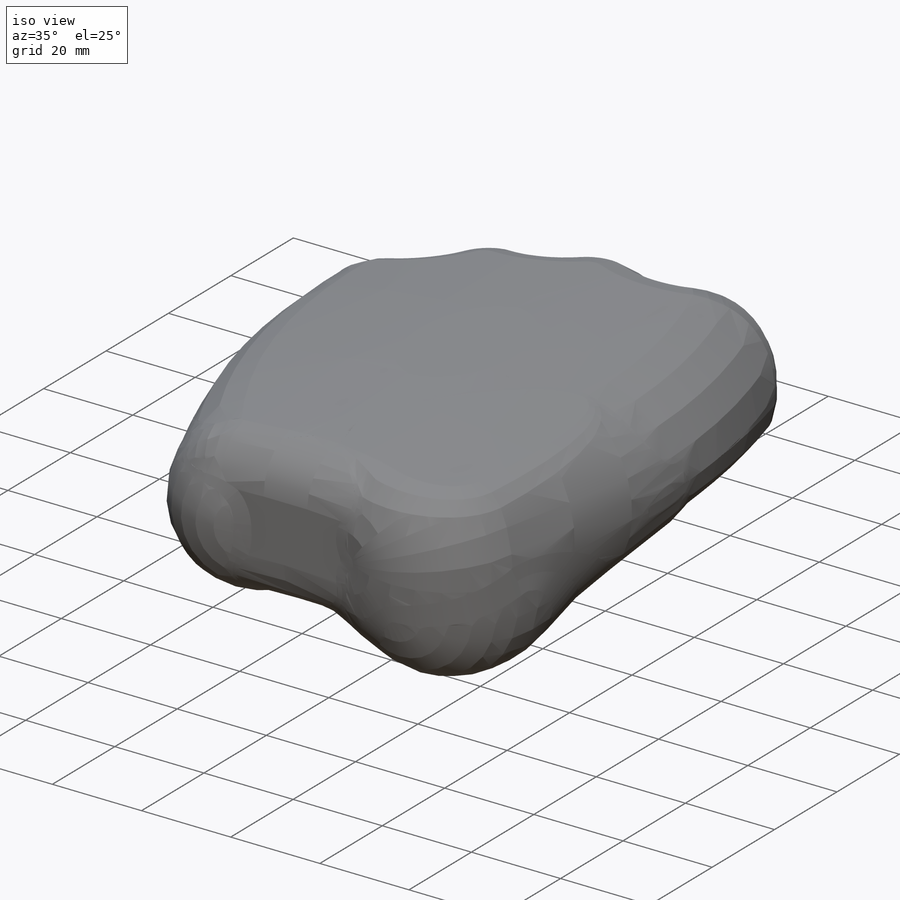
[diagram: iso view]
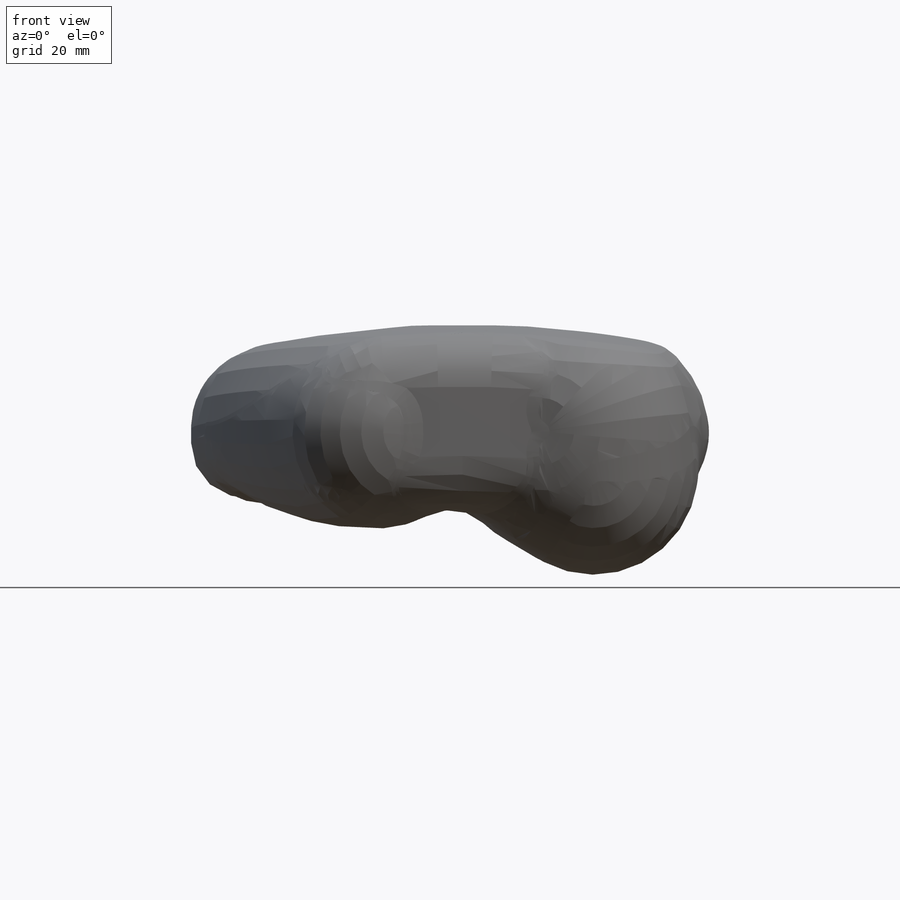
[diagram: front view]
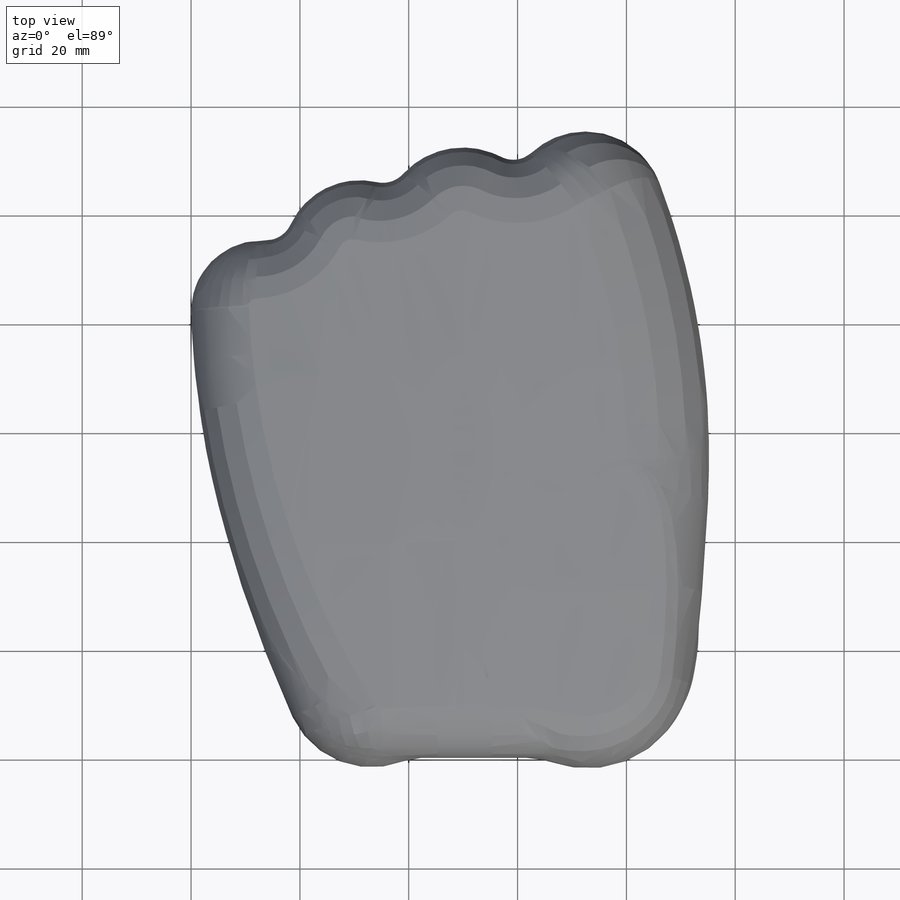
[diagram: top view]
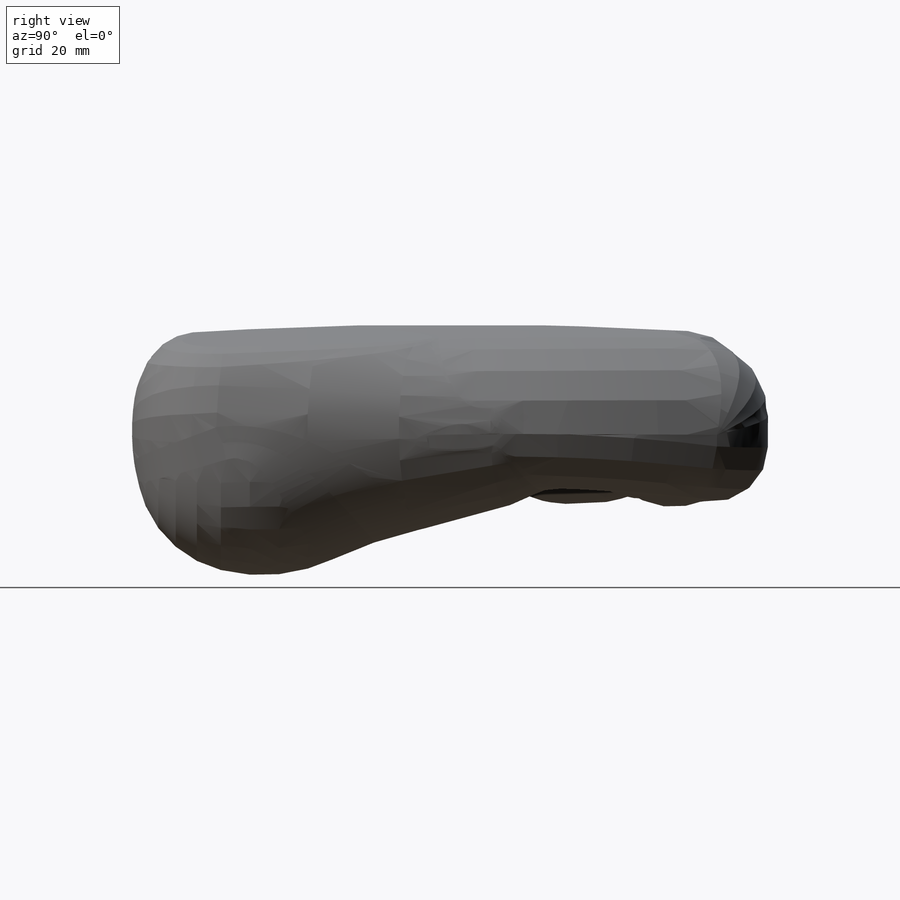
[diagram: right view]
SOLIDWORKS PART (.sldprt)
format: sldprt  version: not decoded by parser v0  size: 772,608 bytes
history: native  units: mm
features: fillet x17, sketch x16, plane x10, cut_revolve x8, revolve x6, material x1, extrude x1, cut_extrude x1 (+11 scaffold rows collapsed)
feature tree (71):
  scaffold x11  (default folders/planes/origin — collapsed)
  material  "Material <nicht festgelegt>"
  plane  "Vorne"
  plane  "Oben"
  plane  "Rechts"
  sketch  "Skizze1"  dims[c1.D3=29.0mm c1.D4=26.0mm c1.D5=30.0mm c1.D6=28.0mm c1.D7=26.0mm c1.D13=10.0mm c1.D2=15.0mm c1.D17=5.0mm c1.D18=5.0mm c1.D19=5.0mm c1.D20=~165.441084mm c1.D21=~141.50525mm c1.D1=87.0mm c2.D2=115.0mm c2.D7=20.0mm c2.D8=9.0mm c2.D9=3.0mm c2.D10=28.0mm c2.D11=47.0mm c2.D12=65.0mm c2.D14=115.0mm c2.D15=97.0mm c3.D7=97.0mm c3.D8=92.0mm c3.D9=82.0mm c3.D11=37.0mm c3.D10=56.0mm c3.D15=74.0mm c3.D16=87.0mm c3.D17=87.0mm c4.D15=64.0mm c4.D10=46.0mm c4.D11=27.0mm c4.D12=55.0mm c4.D16=4.5mm]
  extrude  "Basis-Linear austragen"  Depth=50mm
  plane  "Ebene1"  Offset=50mm
  plane  "Ebene Zeigefinger"  Offset=24mm
  plane  "Ebene Mittelfinger"  Offset=0.25mm
  plane  "Ebene Ringfinger"  Offset=20mm
  plane  "Ebene Kleiner-Finger"  Offset=39.5mm
  plane  "Ebene Daumen"  Offset=15mm
  plane  "Ebene Ballen Handinnenfläche"  Offset=19.5mm
  sketch  "Skizze11"
  cut_revolve  "Schnitt-Rotation2"  Angle=45deg
  fillet  "Verrundung1"  Radius=18mm
  fillet  "Verrundung2"  Radius=15mm
  fillet  "Verrundung3"  Radius=10mm
  fillet  "Verrundung4"  Radius=12.5mm
  sketch  "Skizze6"  dims[D2=~199.953949mm D1=27.0mm]
  cut_revolve  "Schnitt-Rotation1"  Angle=360deg
  fillet  "Verrundung16"  Radius=10mm
  fillet  "Verrundung17"  Radius=10mm
  fillet  "Verrundung18"  Radius=10mm
  fillet  "Verrundung19"  Radius=10mm
  fillet  "Verrundung20"  Radius=100mm
  sketch  "Skizze7"  dims[c1.D1=1.5mm c1.D2=~104.644339mm c1.D3=13.0mm c2.D2=13.5mm c2.D1=10.0mm c2.D3=1.5mm c2.D4=10.5mm]
  sketch  "Skizze8"  dims[c1.D2=3.0mm c1.D1=12.0mm c1.D3=12.0mm c2.D1=14.0mm c2.D2=10.0mm c2.D3=7.0mm c2.D4=~1.983995mm c3.D1=1.5mm c3.D4=~24.347943mm c4.D1=1.5mm c4.D4=14.0mm]
  sketch  "Skizze9"  dims[c1.D2=3.0mm c1.D1=11.0mm c1.D3=11.0mm c2.D1=13.5mm c2.D2=10.0mm c2.D3=1.5mm c2.D4=7.0mm]
  sketch  "Skizze10"  dims[c1.D2=3.0mm c1.D1=13.5mm c1.D3=11.0mm c2.D2=10.0mm c2.D3=1.5mm c2.D4=11.5mm]
  sketch  "Skizze13"
  revolve  "Rotation1"  Angle=360deg
  fillet  "Verrundung21"  Radius=10mm
  sketch  "Skizze14"
  revolve  "Rotation2"  Angle=360deg
  fillet  "Verrundung49"  Radius=9mm
  sketch  "Skizze15"  dims[D1=0.0mm]
  cut_revolve  "Schnitt-Rotation3"  Angle=45deg
  fillet  "Verrundung26"  Radius=8mm
  fillet  "Verrundung50"  Radius=150mm
  sketch  "Skizze16"
  revolve  "Rotation4"  Angle=360deg
  fillet  "Verrundung63"  Radius=4mm
  sketch  "Skizze17"
  revolve  "Rotation5"  Angle=360deg
  fillet  "Verrundung65"  Radius=6mm
  sketch  "Skizze18"
  revolve  "Rotation6"  Angle=360deg
  fillet  "Verrundung68"  Radius=15mm
  sketch  "Skizze21"
  revolve  "Rotation7"  Angle=360deg
  fillet  "Verrundung69"  Radius=80mm
  cut_revolve  "Gelenk Zeigefinger"  Angle=360deg
  cut_revolve  "Gelenk Mittelfinger"  Angle=360deg
  cut_revolve  "Gelenk Ringfinger"  Angle=360deg
  cut_revolve  "Gelenk Kleiner-Finger"  Angle=360deg
  sketch  "Skizze12"  dims[D1=10.0mm D2=1.5mm D3=26.0mm D4=72.0mm]
  cut_revolve  "Gelenk Daumen"  Angle=360deg
  sketch  "Skizze20"  dims[c1.D1=3.0mm c1.D3=3.0mm c1.D4=5.0mm c1.D6=1.0mm c1.D2=13.5mm c2.D3=2.5mm c2.D5=2.5mm c3.D5=30.0deg c4.D5=2.5mm c5.D5=30.0deg c5.D7=0.5mm c5.D8=0.5mm c5.D6=0.5mm c6.D7=0.5mm]
  cut_extrude  "Handgelenk"  Depth=7mm
decode coverage: 42 of 49 modeling features carry decoded parameters
note: ~ marks probable driven/reference dimensions
note: suppression state not decoded; provenance and decode notes live in map.json
